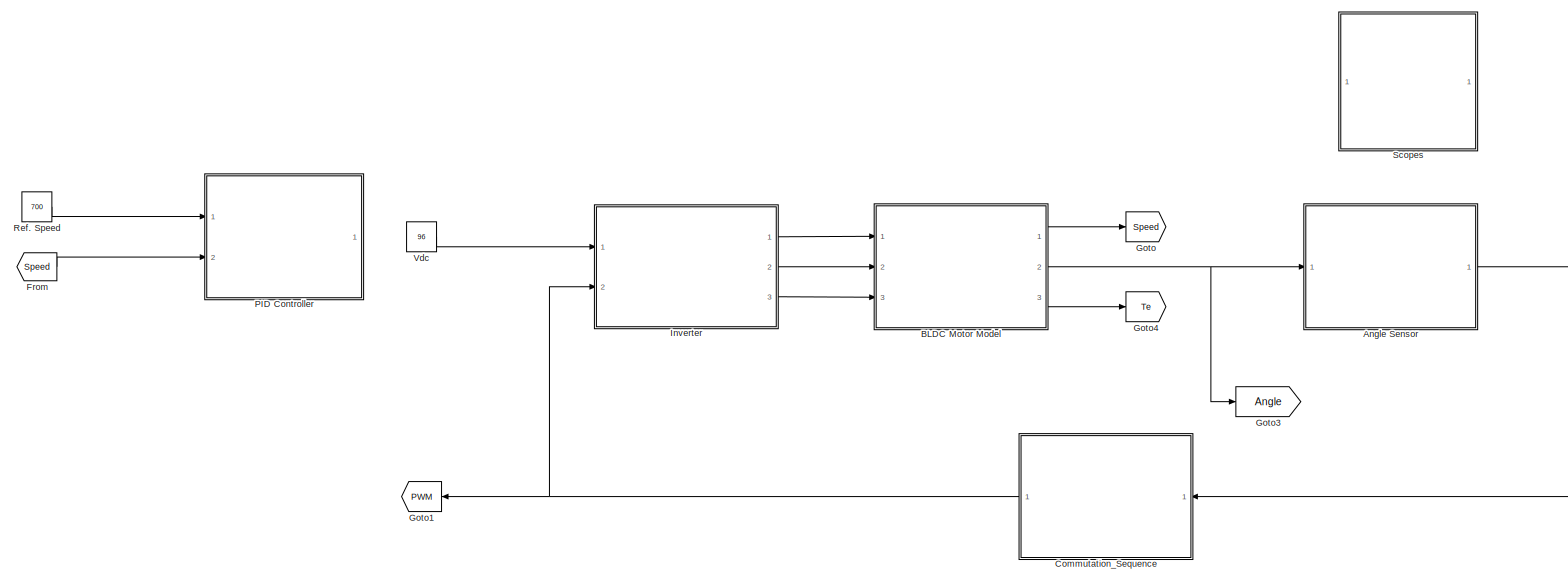
[diagram: root canvas - part 1/1, most of the canvas]
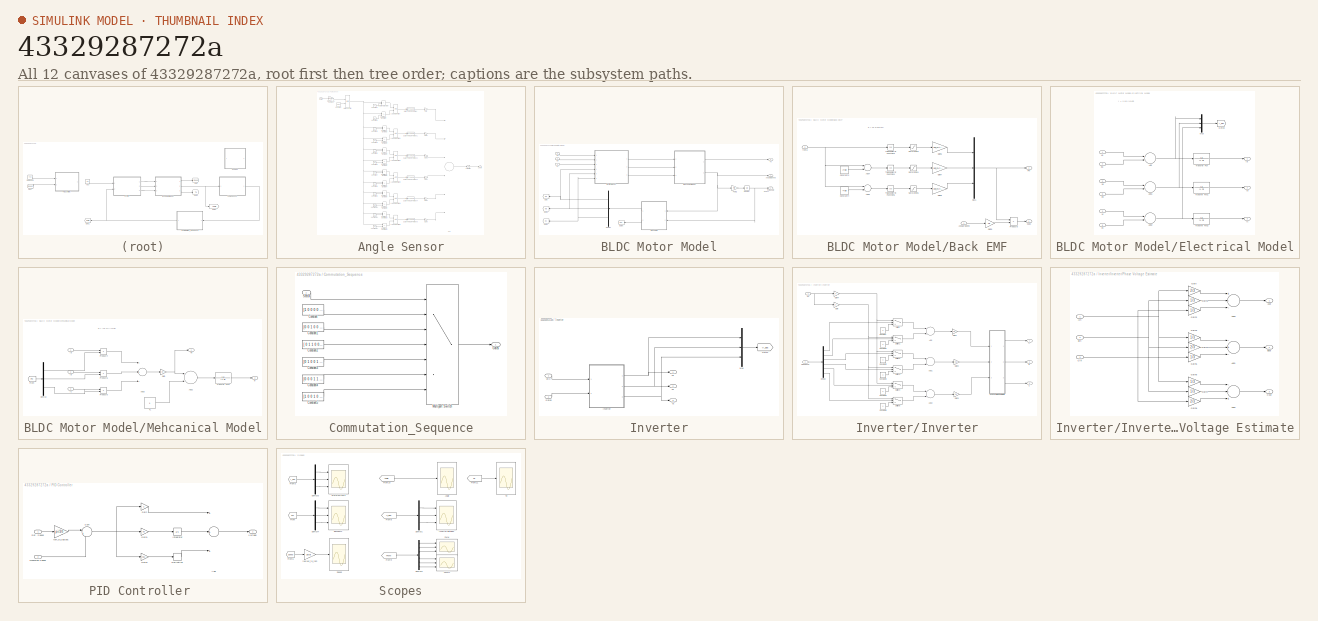
[diagram: thumbnail index - all 12 canvases of the model, root first then tree order]
MODEL slx_43329287272a
KIND model
CONFIG AbsTol = auto
CONFIG FixedStep = auto
CONFIG MaxStep = auto
CONFIG MinStep = auto
CONFIG RelTol = auto
CONFIG SampleTimeConstraint = Unconstrained
CONFIG Solver = ode45
CONFIG SolverMode = Auto
CONFIG SolverName = ode45
CONFIG StartTime = 0.0
CONFIG StopTime = 1
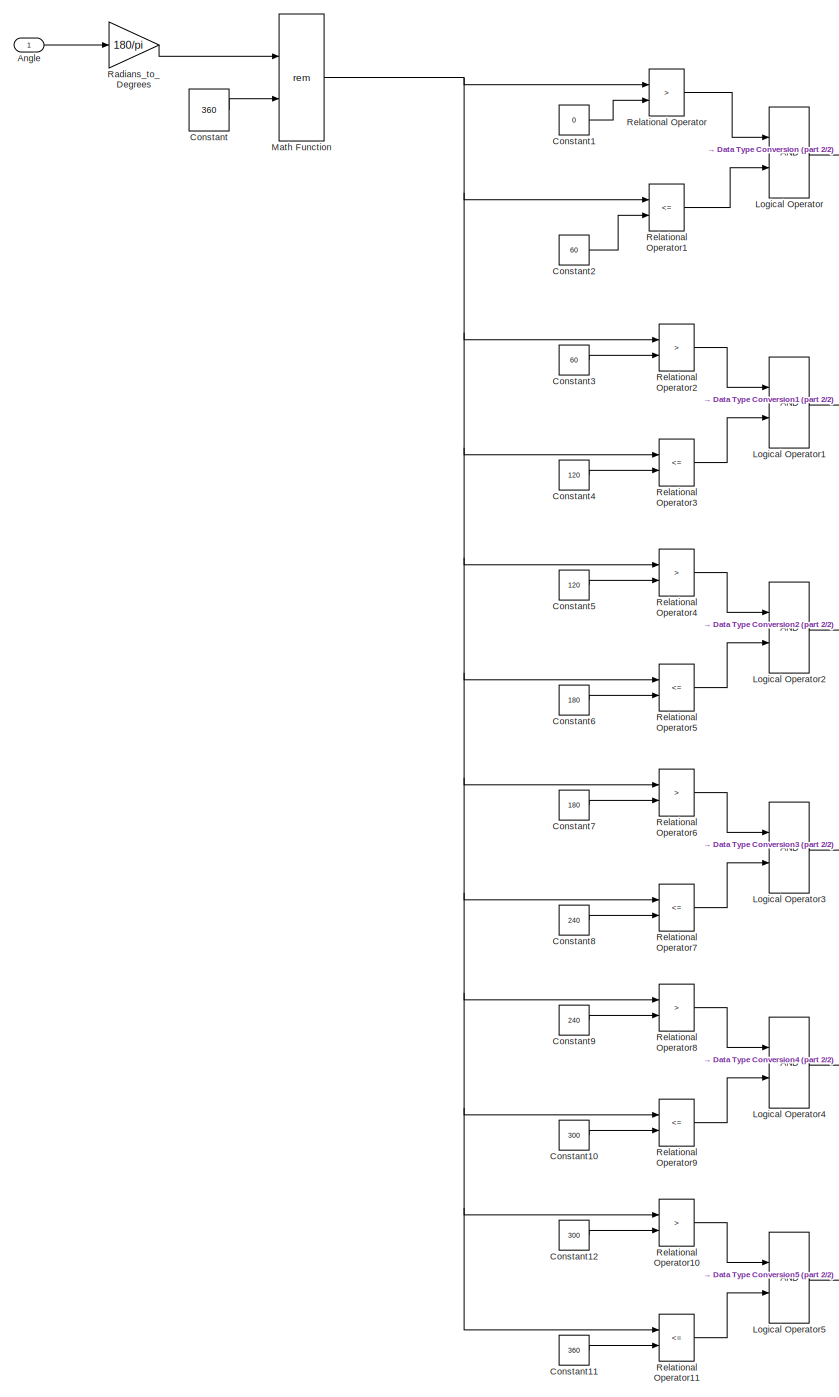
[diagram: Angle Sensor - part 1/2, left side, full height]
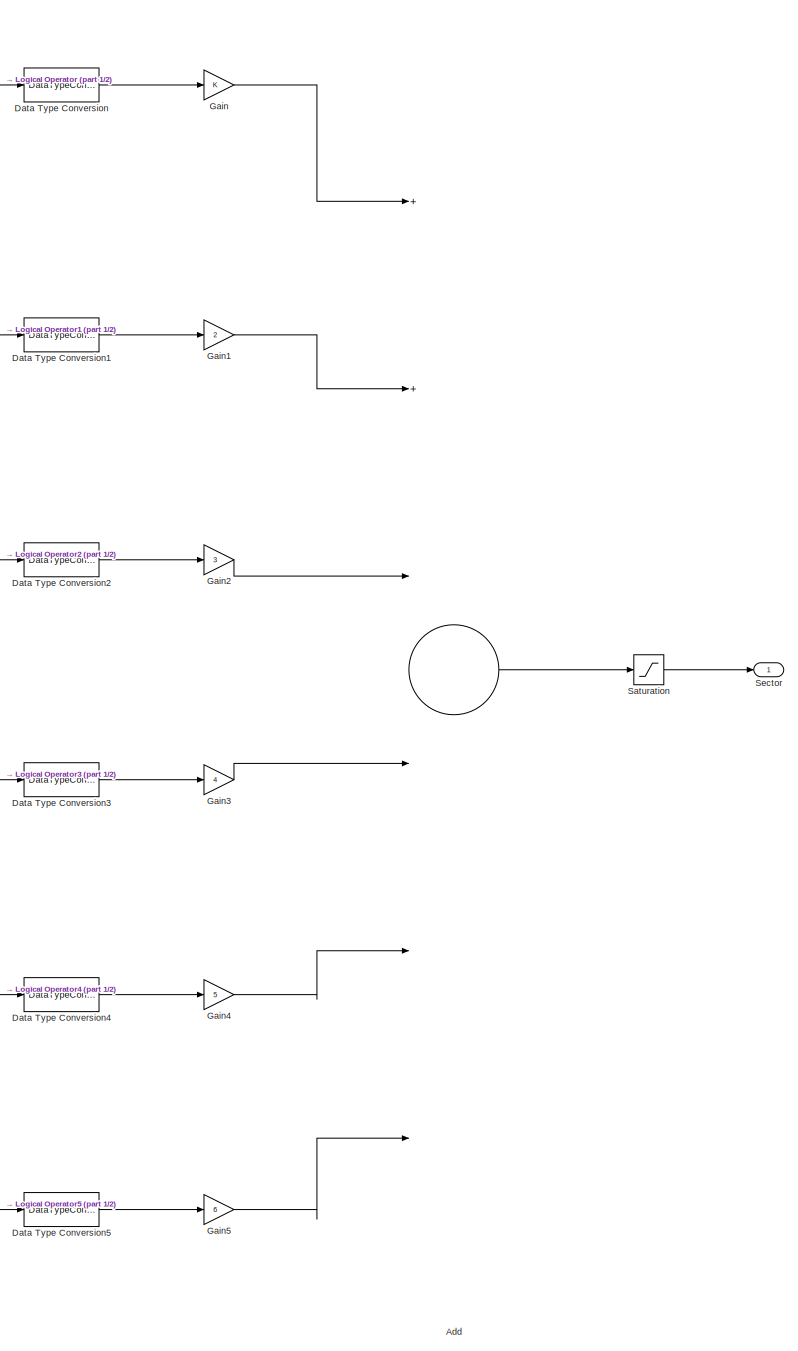
[diagram: Angle Sensor - part 2/2, right side, full height]
BLOCK [SubSystem] Angle Sensor
  Ports = [1, 1]
  RequestExecContextInheritance = off
BLOCK [Sum] Angle Sensor/Add
  InputSameDT = off
  Inputs = 6
  OutDataTypeStr = Inherit: Inherit via internal rule
  Ports = [6, 1]
  SaturateOnIntegerOverflow = off
BLOCK [Inport] Angle Sensor/Angle
  IconDisplay = Port number
BLOCK [Constant] Angle Sensor/Constant
  Value = 360
BLOCK [Constant] Angle Sensor/Constant1
  Value = 0
BLOCK [Constant] Angle Sensor/Constant10
  Value = 300
BLOCK [Constant] Angle Sensor/Constant11
  Value = 360
BLOCK [Constant] Angle Sensor/Constant12
  Value = 300
BLOCK [Constant] Angle Sensor/Constant2
  Value = 60
BLOCK [Constant] Angle Sensor/Constant3
  Value = 60
BLOCK [Constant] Angle Sensor/Constant4
  Value = 120
BLOCK [Constant] Angle Sensor/Constant5
  Value = 120
BLOCK [Constant] Angle Sensor/Constant6
  Value = 180
BLOCK [Constant] Angle Sensor/Constant7
  Value = 180
BLOCK [Constant] Angle Sensor/Constant8
  Value = 240
BLOCK [Constant] Angle Sensor/Constant9
  Value = 240
BLOCK [DataTypeConversion] Angle Sensor/Data Type Conversion
  RndMeth = Floor
  SaturateOnIntegerOverflow = off
BLOCK [DataTypeConversion] Angle Sensor/Data Type Conversion1
  RndMeth = Floor
  SaturateOnIntegerOverflow = off
BLOCK [DataTypeConversion] Angle Sensor/Data Type Conversion2
  RndMeth = Floor
  SaturateOnIntegerOverflow = off
BLOCK [DataTypeConversion] Angle Sensor/Data Type Conversion3
  RndMeth = Floor
  SaturateOnIntegerOverflow = off
BLOCK [DataTypeConversion] Angle Sensor/Data Type Conversion4
  RndMeth = Floor
  SaturateOnIntegerOverflow = off
BLOCK [DataTypeConversion] Angle Sensor/Data Type Conversion5
  RndMeth = Floor
  SaturateOnIntegerOverflow = off
BLOCK [Gain] Angle Sensor/Gain
  OutDataTypeStr = Inherit: Inherit via internal rule
  ParamDataTypeStr = Inherit: Inherit via internal rule
  SaturateOnIntegerOverflow = off
BLOCK [Gain] Angle Sensor/Gain1
  Gain = 2
  OutDataTypeStr = Inherit: Inherit via internal rule
  ParamDataTypeStr = Inherit: Inherit via internal rule
  SaturateOnIntegerOverflow = off
BLOCK [Gain] Angle Sensor/Gain2
  Gain = 3
  OutDataTypeStr = Inherit: Inherit via internal rule
  ParamDataTypeStr = Inherit: Inherit via internal rule
  SaturateOnIntegerOverflow = off
BLOCK [Gain] Angle Sensor/Gain3
  Gain = 4
  OutDataTypeStr = Inherit: Inherit via internal rule
  ParamDataTypeStr = Inherit: Inherit via internal rule
  SaturateOnIntegerOverflow = off
BLOCK [Gain] Angle Sensor/Gain4
  Gain = 5
  OutDataTypeStr = Inherit: Inherit via internal rule
  ParamDataTypeStr = Inherit: Inherit via internal rule
  SaturateOnIntegerOverflow = off
BLOCK [Gain] Angle Sensor/Gain5
  Gain = 6
  OutDataTypeStr = Inherit: Inherit via internal rule
  ParamDataTypeStr = Inherit: Inherit via internal rule
  SaturateOnIntegerOverflow = off
BLOCK [Logic] Angle Sensor/Logical Operator
  AllPortsSameDT = off
  OutDataTypeStr = boolean
  Ports = [2, 1]
BLOCK [Logic] Angle Sensor/Logical Operator1
  AllPortsSameDT = off
  OutDataTypeStr = boolean
  Ports = [2, 1]
BLOCK [Logic] Angle Sensor/Logical Operator2
  AllPortsSameDT = off
  OutDataTypeStr = boolean
  Ports = [2, 1]
BLOCK [Logic] Angle Sensor/Logical Operator3
  AllPortsSameDT = off
  OutDataTypeStr = boolean
  Ports = [2, 1]
BLOCK [Logic] Angle Sensor/Logical Operator4
  AllPortsSameDT = off
  OutDataTypeStr = boolean
  Ports = [2, 1]
BLOCK [Logic] Angle Sensor/Logical Operator5
  AllPortsSameDT = off
  OutDataTypeStr = boolean
  Ports = [2, 1]
BLOCK [Math] Angle Sensor/Math Function
  Operator = rem
  Ports = [2, 1]
BLOCK [Gain] Angle Sensor/Radians_to_Degrees
  Gain = 180/pi
  OutDataTypeStr = Inherit: Inherit via internal rule
  ParamDataTypeStr = Inherit: Inherit via internal rule
  SaturateOnIntegerOverflow = off
BLOCK [RelationalOperator] Angle Sensor/Relational Operator
  InputSameDT = off
  Operator = >
  OutDataTypeStr = boolean
  Ports = [2, 1]
BLOCK [RelationalOperator] Angle Sensor/Relational Operator1
  InputSameDT = off
  Operator = <=
  OutDataTypeStr = boolean
  Ports = [2, 1]
BLOCK [RelationalOperator] Angle Sensor/Relational Operator10
  InputSameDT = off
  Operator = >
  OutDataTypeStr = boolean
  Ports = [2, 1]
BLOCK [RelationalOperator] Angle Sensor/Relational Operator11
  InputSameDT = off
  Operator = <=
  OutDataTypeStr = boolean
  Ports = [2, 1]
BLOCK [RelationalOperator] Angle Sensor/Relational Operator2
  InputSameDT = off
  Operator = >
  OutDataTypeStr = boolean
  Ports = [2, 1]
BLOCK [RelationalOperator] Angle Sensor/Relational Operator3
  InputSameDT = off
  Operator = <=
  OutDataTypeStr = boolean
  Ports = [2, 1]
BLOCK [RelationalOperator] Angle Sensor/Relational Operator4
  InputSameDT = off
  Operator = >
  OutDataTypeStr = boolean
  Ports = [2, 1]
BLOCK [RelationalOperator] Angle Sensor/Relational Operator5
  InputSameDT = off
  Operator = <=
  OutDataTypeStr = boolean
  Ports = [2, 1]
BLOCK [RelationalOperator] Angle Sensor/Relational Operator6
  InputSameDT = off
  Operator = >
  OutDataTypeStr = boolean
  Ports = [2, 1]
BLOCK [RelationalOperator] Angle Sensor/Relational Operator7
  InputSameDT = off
  Operator = <=
  OutDataTypeStr = boolean
  Ports = [2, 1]
BLOCK [RelationalOperator] Angle Sensor/Relational Operator8
  InputSameDT = off
  Operator = >
  OutDataTypeStr = boolean
  Ports = [2, 1]
BLOCK [RelationalOperator] Angle Sensor/Relational Operator9
  InputSameDT = off
  Operator = <=
  OutDataTypeStr = boolean
  Ports = [2, 1]
BLOCK [Saturate] Angle Sensor/Saturation
  InputPortMap = u0
  LowerLimit = 1
  Ports = [1, 1]
  UpperLimit = 6
BLOCK [Outport] Angle Sensor/Sector
  IconDisplay = Port number
BLOCK [SubSystem] BLDC Motor Model
  Ports = [3, 3]
  RequestExecContextInheritance = off
BLOCK [Outport] BLDC Motor Model/AngularSpeed
  IconDisplay = Port number
BLOCK [SubSystem] BLDC Motor Model/Back EMF
  Ports = [2, 2]
  RequestExecContextInheritance = off
BLOCK [Sum] BLDC Motor Model/Back EMF/Add4
  InputSameDT = off
  Inputs = +-
  OutDataTypeStr = Inherit: Inherit via internal rule
  Ports = [2, 1]
  SaturateOnIntegerOverflow = off
BLOCK [Sum] BLDC Motor Model/Back EMF/Add5
  InputSameDT = off
  Inputs = +-
  OutDataTypeStr = Inherit: Inherit via internal rule
  Ports = [2, 1]
  SaturateOnIntegerOverflow = off
BLOCK [Inport] BLDC Motor Model/Back EMF/AngularSpeed
  IconDisplay = Port number
BLOCK [Constant] BLDC Motor Model/Back EMF/Constant3
  Value = 2*pi/3
BLOCK [Constant] BLDC Motor Model/Back EMF/Constant4
  Value = 4*pi/3
BLOCK [Gain] BLDC Motor Model/Back EMF/Gain6
  Gain = phi_m/trap
  OutDataTypeStr = Inherit: Inherit via internal rule
  ParamDataTypeStr = Inherit: Inherit via internal rule
  SaturateOnIntegerOverflow = off
BLOCK [Gain] BLDC Motor Model/Back EMF/Gain7
  Gain = phi_m/trap
  OutDataTypeStr = Inherit: Inherit via internal rule
  ParamDataTypeStr = Inherit: Inherit via internal rule
  SaturateOnIntegerOverflow = off
BLOCK [Gain] BLDC Motor Model/Back EMF/Gain8
  Gain = phi_m/trap
  OutDataTypeStr = Inherit: Inherit via internal rule
  ParamDataTypeStr = Inherit: Inherit via internal rule
  SaturateOnIntegerOverflow = off
BLOCK [Gain] BLDC Motor Model/Back EMF/Gain9
  Gain = Ke
  OutDataTypeStr = Inherit: Inherit via internal rule
  ParamDataTypeStr = Inherit: Inherit via internal rule
  SaturateOnIntegerOverflow = off
BLOCK [Mux] BLDC Motor Model/Back EMF/Mux1
  DisplayOption = bar
  Inputs = 3
  Ports = [3, 1]
BLOCK [Outport] BLDC Motor Model/Back EMF/Phi
  IconDisplay = Port number
  Port = 2
BLOCK [Product] BLDC Motor Model/Back EMF/Product6
  InputSameDT = off
  OutDataTypeStr = Inherit: Inherit via internal rule
  Ports = [2, 1]
  RndMeth = Floor
  SaturateOnIntegerOverflow = off
BLOCK [Saturate] BLDC Motor Model/Back EMF/Saturation3
  InputPortMap = u0
  LowerLimit = -trap
  Ports = [1, 1]
  UpperLimit = trap
BLOCK [Saturate] BLDC Motor Model/Back EMF/Saturation4
  InputPortMap = u0
  LowerLimit = -trap
  Ports = [1, 1]
  UpperLimit = trap
BLOCK [Saturate] BLDC Motor Model/Back EMF/Saturation5
  InputPortMap = u0
  LowerLimit = -trap
  Ports = [1, 1]
  UpperLimit = trap
BLOCK [Trigonometry] BLDC Motor Model/Back EMF/Trigonometric Function3
  Operator = cos
  Ports = [1, 1]
BLOCK [Trigonometry] BLDC Motor Model/Back EMF/Trigonometric Function4
  Operator = cos
  Ports = [1, 1]
BLOCK [Trigonometry] BLDC Motor Model/Back EMF/Trigonometric Function5
  Operator = cos
  Ports = [1, 1]
BLOCK [Outport] BLDC Motor Model/Back EMF/eabc
  IconDisplay = Port number
BLOCK [Inport] BLDC Motor Model/Back EMF/theta
  IconDisplay = Port number
  Port = 2
BLOCK [Demux] BLDC Motor Model/Demux
  DisplayOption = bar
  Outputs = 3
  Ports = [1, 3]
BLOCK [SubSystem] BLDC Motor Model/Electrical Model
  Ports = [6, 3]
  RequestExecContextInheritance = off
BLOCK [Sum] BLDC Motor Model/Electrical Model/Add
  InputSameDT = off
  Inputs = +-
  OutDataTypeStr = Inherit: Inherit via internal rule
  Ports = [2, 1]
  SaturateOnIntegerOverflow = off
BLOCK [Sum] BLDC Motor Model/Electrical Model/Add1
  InputSameDT = off
  Inputs = +-
  OutDataTypeStr = Inherit: Inherit via internal rule
  Ports = [2, 1]
  SaturateOnIntegerOverflow = off
BLOCK [Sum] BLDC Motor Model/Electrical Model/Add2
  InputSameDT = off
  Inputs = +-
  OutDataTypeStr = Inherit: Inherit via internal rule
  Ports = [2, 1]
  SaturateOnIntegerOverflow = off
BLOCK [Goto] BLDC Motor Model/Electrical Model/Goto3
  GotoTag = I_abc
  TagVisibility = global
BLOCK [Outport] BLDC Motor Model/Electrical Model/Ia
  IconDisplay = Port number
BLOCK [Outport] BLDC Motor Model/Electrical Model/Ib
  IconDisplay = Port number
  Port = 2
BLOCK [Outport] BLDC Motor Model/Electrical Model/Ic
  IconDisplay = Port number
  Port = 3
BLOCK [Mux] BLDC Motor Model/Electrical Model/Mux
  DisplayOption = bar
  Inputs = 3
  Ports = [3, 1]
BLOCK [TransferFcn] BLDC Motor Model/Electrical Model/Transfer Fcn
  Denominator = [L R]
BLOCK [TransferFcn] BLDC Motor Model/Electrical Model/Transfer Fcn1
  Denominator = [L R]
BLOCK [TransferFcn] BLDC Motor Model/Electrical Model/Transfer Fcn2
  Denominator = [L R]
BLOCK [Inport] BLDC Motor Model/Electrical Model/Va
  IconDisplay = Port number
BLOCK [Inport] BLDC Motor Model/Electrical Model/Vb
  IconDisplay = Port number
  Port = 2
BLOCK [Inport] BLDC Motor Model/Electrical Model/Vc
  IconDisplay = Port number
  Port = 3
BLOCK [Inport] BLDC Motor Model/Electrical Model/ea
  IconDisplay = Port number
  Port = 4
BLOCK [Inport] BLDC Motor Model/Electrical Model/eb
  IconDisplay = Port number
  Port = 5
BLOCK [Inport] BLDC Motor Model/Electrical Model/ec
  IconDisplay = Port number
  Port = 6
BLOCK [Goto] BLDC Motor Model/Goto
  GotoTag = ea
  TagVisibility = global
BLOCK [Goto] BLDC Motor Model/Goto1
  GotoTag = eb
  TagVisibility = global
BLOCK [Goto] BLDC Motor Model/Goto2
  GotoTag = ec
  TagVisibility = global
BLOCK [Goto] BLDC Motor Model/Goto6
  GotoTag = Phi
  TagVisibility = global
BLOCK [Integrator] BLDC Motor Model/Integrator
  InitialCondition = 0.0000001
  LowerSaturationLimit = -60
  Ports = [1, 1]
  UpperSaturationLimit = 60
BLOCK [SubSystem] BLDC Motor Model/Mehcanical Model
  Ports = [3, 2]
  RequestExecContextInheritance = off
BLOCK [Sum] BLDC Motor Model/Mehcanical Model/Add2
  InputSameDT = off
  Inputs = +-
  OutDataTypeStr = Inherit: Inherit via internal rule
  Ports = [2, 1]
  SaturateOnIntegerOverflow = off
BLOCK [Sum] BLDC Motor Model/Mehcanical Model/Add3
  InputSameDT = off
  Inputs = +++
  OutDataTypeStr = Inherit: Inherit via internal rule
  Ports = [3, 1]
  SaturateOnIntegerOverflow = off
BLOCK [Demux] BLDC Motor Model/Mehcanical Model/Demux
  DisplayOption = bar
  Outputs = 3
  Ports = [1, 3]
BLOCK [From] BLDC Motor Model/Mehcanical Model/From
  GotoTag = Phi
  TagVisibility = global
BLOCK [Gain] BLDC Motor Model/Mehcanical Model/Gain
  Gain = Kt
  OutDataTypeStr = Inherit: Inherit via internal rule
  ParamDataTypeStr = Inherit: Inherit via internal rule
  SaturateOnIntegerOverflow = off
BLOCK [Inport] BLDC Motor Model/Mehcanical Model/Ia
  IconDisplay = Port number
BLOCK [Inport] BLDC Motor Model/Mehcanical Model/Ib
  IconDisplay = Port number
  Port = 2
BLOCK [Inport] BLDC Motor Model/Mehcanical Model/Ic
  IconDisplay = Port number
  Port = 3
BLOCK [Product] BLDC Motor Model/Mehcanical Model/Product4
  InputSameDT = off
  OutDataTypeStr = Inherit: Inherit via internal rule
  Ports = [2, 1]
  RndMeth = Floor
  SaturateOnIntegerOverflow = off
BLOCK [Product] BLDC Motor Model/Mehcanical Model/Product5
  InputSameDT = off
  OutDataTypeStr = Inherit: Inherit via internal rule
  Ports = [2, 1]
  RndMeth = Floor
  SaturateOnIntegerOverflow = off
BLOCK [Product] BLDC Motor Model/Mehcanical Model/Product6
  InputSameDT = off
  OutDataTypeStr = Inherit: Inherit via internal rule
  Ports = [2, 1]
  RndMeth = Floor
  SaturateOnIntegerOverflow = off
BLOCK [Constant] BLDC Motor Model/Mehcanical Model/TL
BLOCK [Outport] BLDC Motor Model/Mehcanical Model/Te
  IconDisplay = Port number
BLOCK [TransferFcn] BLDC Motor Model/Mehcanical Model/Transfer Fcn1
  Denominator = [J B]
BLOCK [Outport] BLDC Motor Model/Mehcanical Model/w
  IconDisplay = Port number
  Port = 2
BLOCK [Gain] BLDC Motor Model/Pole//2
  Gain = P/2
  OutDataTypeStr = Inherit: Inherit via internal rule
  ParamDataTypeStr = Inherit: Inherit via internal rule
  SaturateOnIntegerOverflow = off
BLOCK [Outport] BLDC Motor Model/RotorAngle
  IconDisplay = Port number
  Port = 2
BLOCK [Outport] BLDC Motor Model/Te
  IconDisplay = Port number
  Port = 3
BLOCK [Inport] BLDC Motor Model/Va
  IconDisplay = Port number
BLOCK [Inport] BLDC Motor Model/Vb
  IconDisplay = Port number
  Port = 2
BLOCK [Inport] BLDC Motor Model/Vc
  IconDisplay = Port number
  Port = 3
BLOCK [SubSystem] Commutation_Sequence
  Ports = [1, 1]
  RequestExecContextInheritance = off
BLOCK [Constant] Commutation_Sequence/Constant
  Value = [1 0 0 0 0 1]
BLOCK [Constant] Commutation_Sequence/Constant1
  Value = [0 0 1 0 0 1]
BLOCK [Constant] Commutation_Sequence/Constant2
  Value = [ 0 1 1 0 0 0]
BLOCK [Constant] Commutation_Sequence/Constant3
  Value = [0 1 0 0 1 0]
BLOCK [Constant] Commutation_Sequence/Constant4
  Value = [0 0 0 1 1 0]
BLOCK [Constant] Commutation_Sequence/Constant5
  Value = [1 0 0 1 0 0]
BLOCK [Outport] Commutation_Sequence/Gates
  IconDisplay = Port number
BLOCK [MultiPortSwitch] Commutation_Sequence/Multiport Switch
  DiagnosticForDefault = None
  InputSameDT = off
  Inputs = 6
  Ports = [7, 1]
  SaturateOnIntegerOverflow = off
BLOCK [Inport] Commutation_Sequence/Sector
  IconDisplay = Port number
BLOCK [From] From
  Commented = on
  GotoTag = Speed
  TagVisibility = global
BLOCK [Goto] Goto
  GotoTag = Speed
  TagVisibility = global
BLOCK [Goto] Goto1
  GotoTag = PWM
  TagVisibility = global
BLOCK [Goto] Goto3
  GotoTag = Angle
  TagVisibility = global
BLOCK [Goto] Goto4
  GotoTag = Te
  TagVisibility = global
BLOCK [SubSystem] Inverter
  Ports = [2, 3]
  RequestExecContextInheritance = off
BLOCK [Inport] Inverter/Gates
  IconDisplay = Port number
  Port = 2
BLOCK [Goto] Inverter/Goto7
  GotoTag = V_abc
  TagVisibility = global
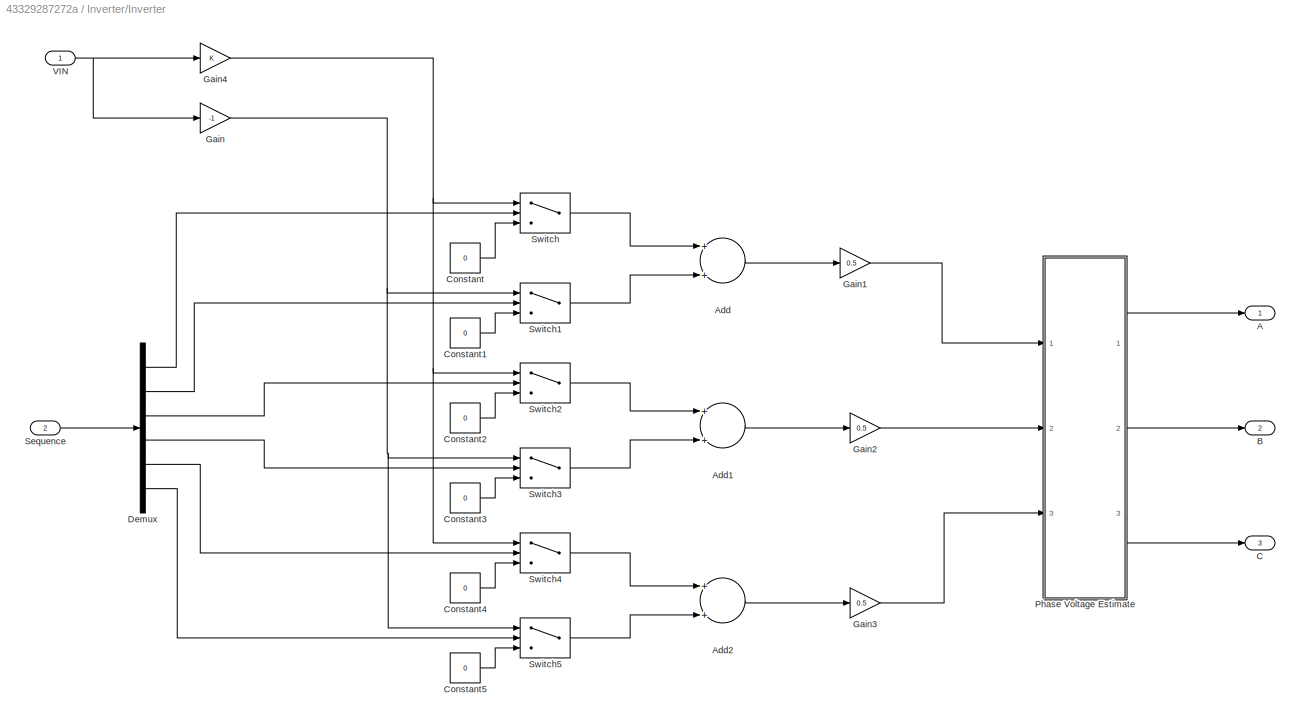
BLOCK [SubSystem] Inverter/Inverter
  Ports = [2, 3]
  RequestExecContextInheritance = off
BLOCK [Outport] Inverter/Inverter/A
  IconDisplay = Port number
BLOCK [Sum] Inverter/Inverter/Add
  InputSameDT = off
  OutDataTypeStr = Inherit: Inherit via internal rule
  Ports = [2, 1]
  SaturateOnIntegerOverflow = off
BLOCK [Sum] Inverter/Inverter/Add1
  InputSameDT = off
  OutDataTypeStr = Inherit: Inherit via internal rule
  Ports = [2, 1]
  SaturateOnIntegerOverflow = off
BLOCK [Sum] Inverter/Inverter/Add2
  InputSameDT = off
  OutDataTypeStr = Inherit: Inherit via internal rule
  Ports = [2, 1]
  SaturateOnIntegerOverflow = off
BLOCK [Outport] Inverter/Inverter/B
  IconDisplay = Port number
  Port = 2
BLOCK [Outport] Inverter/Inverter/C
  IconDisplay = Port number
  Port = 3
BLOCK [Constant] Inverter/Inverter/Constant
  Value = 0
BLOCK [Constant] Inverter/Inverter/Constant1
  Value = 0
BLOCK [Constant] Inverter/Inverter/Constant2
  Value = 0
BLOCK [Constant] Inverter/Inverter/Constant3
  Value = 0
BLOCK [Constant] Inverter/Inverter/Constant4
  Value = 0
BLOCK [Constant] Inverter/Inverter/Constant5
  Value = 0
BLOCK [Demux] Inverter/Inverter/Demux
  DisplayOption = bar
  Outputs = 6
  Ports = [1, 6]
BLOCK [Gain] Inverter/Inverter/Gain
  Gain = -1
  OutDataTypeStr = Inherit: Inherit via internal rule
  ParamDataTypeStr = Inherit: Inherit via internal rule
  SaturateOnIntegerOverflow = off
BLOCK [Gain] Inverter/Inverter/Gain1
  Gain = 0.5
  OutDataTypeStr = Inherit: Inherit via internal rule
  ParamDataTypeStr = Inherit: Inherit via internal rule
  SaturateOnIntegerOverflow = off
BLOCK [Gain] Inverter/Inverter/Gain2
  Gain = 0.5
  OutDataTypeStr = Inherit: Inherit via internal rule
  ParamDataTypeStr = Inherit: Inherit via internal rule
  SaturateOnIntegerOverflow = off
BLOCK [Gain] Inverter/Inverter/Gain3
  Gain = 0.5
  OutDataTypeStr = Inherit: Inherit via internal rule
  ParamDataTypeStr = Inherit: Inherit via internal rule
  SaturateOnIntegerOverflow = off
BLOCK [Gain] Inverter/Inverter/Gain4
  OutDataTypeStr = Inherit: Inherit via internal rule
  ParamDataTypeStr = Inherit: Inherit via internal rule
  SaturateOnIntegerOverflow = off
BLOCK [SubSystem] Inverter/Inverter/Phase Voltage Estimate
  Ports = [3, 3]
  RequestExecContextInheritance = off
BLOCK [Sum] Inverter/Inverter/Phase Voltage Estimate/Add1
  InputSameDT = off
  Inputs = -+-
  OutDataTypeStr = Inherit: Inherit via internal rule
  Ports = [3, 1]
  SaturateOnIntegerOverflow = off
BLOCK [Sum] Inverter/Inverter/Phase Voltage Estimate/Add2
  InputSameDT = off
  Inputs = --+
  OutDataTypeStr = Inherit: Inherit via internal rule
  Ports = [3, 1]
  SaturateOnIntegerOverflow = off
BLOCK [Sum] Inverter/Inverter/Phase Voltage Estimate/Add3
  InputSameDT = off
  Inputs = +--
  OutDataTypeStr = Inherit: Inherit via internal rule
  Ports = [3, 1]
  SaturateOnIntegerOverflow = off
BLOCK [Inport] Inverter/Inverter/Phase Voltage Estimate/Ain
  IconDisplay = Port number
BLOCK [Outport] Inverter/Inverter/Phase Voltage Estimate/Aout
  IconDisplay = Port number
BLOCK [Inport] Inverter/Inverter/Phase Voltage Estimate/Bin
  IconDisplay = Port number
  Port = 2
BLOCK [Outport] Inverter/Inverter/Phase Voltage Estimate/Bout
  IconDisplay = Port number
  Port = 2
BLOCK [Inport] Inverter/Inverter/Phase Voltage Estimate/Cin
  IconDisplay = Port number
  Port = 3
BLOCK [Outport] Inverter/Inverter/Phase Voltage Estimate/Cout
  IconDisplay = Port number
  Port = 3
BLOCK [Gain] Inverter/Inverter/Phase Voltage Estimate/Gain
  Gain = 2/3
  OutDataTypeStr = Inherit: Inherit via internal rule
  ParamDataTypeStr = Inherit: Inherit via internal rule
  SaturateOnIntegerOverflow = off
BLOCK [Gain] Inverter/Inverter/Phase Voltage Estimate/Gain1
  Gain = 1/3
  OutDataTypeStr = Inherit: Inherit via internal rule
  ParamDataTypeStr = Inherit: Inherit via internal rule
  SaturateOnIntegerOverflow = off
BLOCK [Gain] Inverter/Inverter/Phase Voltage Estimate/Gain2
  Gain = 1/3
  OutDataTypeStr = Inherit: Inherit via internal rule
  ParamDataTypeStr = Inherit: Inherit via internal rule
  SaturateOnIntegerOverflow = off
BLOCK [Gain] Inverter/Inverter/Phase Voltage Estimate/Gain3
  Gain = 1/3
  OutDataTypeStr = Inherit: Inherit via internal rule
  ParamDataTypeStr = Inherit: Inherit via internal rule
  SaturateOnIntegerOverflow = off
BLOCK [Gain] Inverter/Inverter/Phase Voltage Estimate/Gain4
  Gain = 2/3
  OutDataTypeStr = Inherit: Inherit via internal rule
  ParamDataTypeStr = Inherit: Inherit via internal rule
  SaturateOnIntegerOverflow = off
BLOCK [Gain] Inverter/Inverter/Phase Voltage Estimate/Gain5
  Gain = 1/3
  OutDataTypeStr = Inherit: Inherit via internal rule
  ParamDataTypeStr = Inherit: Inherit via internal rule
  SaturateOnIntegerOverflow = off
BLOCK [Gain] Inverter/Inverter/Phase Voltage Estimate/Gain6
  Gain = 1/3
  OutDataTypeStr = Inherit: Inherit via internal rule
  ParamDataTypeStr = Inherit: Inherit via internal rule
  SaturateOnIntegerOverflow = off
BLOCK [Gain] Inverter/Inverter/Phase Voltage Estimate/Gain7
  Gain = 1/3
  OutDataTypeStr = Inherit: Inherit via internal rule
  ParamDataTypeStr = Inherit: Inherit via internal rule
  SaturateOnIntegerOverflow = off
BLOCK [Gain] Inverter/Inverter/Phase Voltage Estimate/Gain8
  Gain = 2/3
  OutDataTypeStr = Inherit: Inherit via internal rule
  ParamDataTypeStr = Inherit: Inherit via internal rule
  SaturateOnIntegerOverflow = off
BLOCK [Inport] Inverter/Inverter/Sequence
  IconDisplay = Port number
  Port = 2
BLOCK [Switch] Inverter/Inverter/Switch
  Criteria = u2 > Threshold
  InputSameDT = off
  SaturateOnIntegerOverflow = off
BLOCK [Switch] Inverter/Inverter/Switch1
  Criteria = u2 > Threshold
  InputSameDT = off
  SaturateOnIntegerOverflow = off
BLOCK [Switch] Inverter/Inverter/Switch2
  Criteria = u2 > Threshold
  InputSameDT = off
  SaturateOnIntegerOverflow = off
BLOCK [Switch] Inverter/Inverter/Switch3
  Criteria = u2 > Threshold
  InputSameDT = off
  SaturateOnIntegerOverflow = off
BLOCK [Switch] Inverter/Inverter/Switch4
  Criteria = u2 > Threshold
  InputSameDT = off
  SaturateOnIntegerOverflow = off
BLOCK [Switch] Inverter/Inverter/Switch5
  Criteria = u2 > Threshold
  InputSameDT = off
  SaturateOnIntegerOverflow = off
BLOCK [Inport] Inverter/Inverter/VIN
  IconDisplay = Port number
BLOCK [Mux] Inverter/Mux
  DisplayOption = bar
  Inputs = 3
  Ports = [3, 1]
BLOCK [Inport] Inverter/VDC
  IconDisplay = Port number
BLOCK [Outport] Inverter/Va
  IconDisplay = Port number
BLOCK [Outport] Inverter/Vb
  IconDisplay = Port number
  Port = 2
BLOCK [Outport] Inverter/Vc
  IconDisplay = Port number
  Port = 3
BLOCK [SubSystem] PID Controller 
  Commented = on
  Ports = [2, 1]
  RequestExecContextInheritance = off
BLOCK [Sum] PID Controller /Add
  InputSameDT = off
  Inputs = +++
  OutDataTypeStr = Inherit: Inherit via internal rule
  Ports = [3, 1]
  SaturateOnIntegerOverflow = off
BLOCK [Derivative] PID Controller /Derivative
BLOCK [Gain] PID Controller /Gain
  Gain = 2
  OutDataTypeStr = Inherit: Inherit via internal rule
  ParamDataTypeStr = Inherit: Inherit via internal rule
  SaturateOnIntegerOverflow = off
BLOCK [Gain] PID Controller /Gain1
  Gain = 50
  OutDataTypeStr = Inherit: Inherit via internal rule
  ParamDataTypeStr = Inherit: Inherit via internal rule
  SaturateOnIntegerOverflow = off
BLOCK [Gain] PID Controller /Gain2
  Gain = 0.01
  OutDataTypeStr = Inherit: Inherit via internal rule
  ParamDataTypeStr = Inherit: Inherit via internal rule
  SaturateOnIntegerOverflow = off
BLOCK [Integrator] PID Controller /Integrator
  Ports = [1, 1]
BLOCK [Inport] PID Controller /Measured Speed
  IconDisplay = Port number
  Port = 2
BLOCK [Inport] PID Controller /Ref. Speed
  IconDisplay = Port number
BLOCK [Sum] PID Controller /Sum
  IconShape = round
  InputSameDT = off
  Inputs = |+-
  OutDataTypeStr = Inherit: Inherit via internal rule
  Ports = [2, 1]
  SaturateOnIntegerOverflow = off
BLOCK [Outport] PID Controller /Voltage
  IconDisplay = Port number
BLOCK [Gain] PID Controller /rpm_to_rad//sec
  Gain = pi/30
  OutDataTypeStr = Inherit: Inherit via internal rule
  ParamDataTypeStr = Inherit: Inherit via internal rule
  SaturateOnIntegerOverflow = off
BLOCK [Constant] Ref. Speed
  Commented = on
  Value = 700
BLOCK [SubSystem] Scopes
  Ports = []
  RequestExecContextInheritance = off
BLOCK [Scope] Scopes/Angle
  Floating = off
  LimitDataPoints = off
  NumInputPorts = 1
  Ports = [1]
  SaveName = ScopeData6
  ZoomMode = xonly
BLOCK [Scope] Scopes/BackEMF
  Floating = off
  LimitDataPoints = off
  NumInputPorts = 3
  Ports = [3]
  SaveName = ScopeData2
  YMax = 5~5~5
  YMin = -5~-5~-5
  ZoomMode = xonly
BLOCK [Demux] Scopes/Demux1
  DisplayOption = bar
  Outputs = 3
  Ports = [1, 3]
BLOCK [Demux] Scopes/Demux2
  DisplayOption = bar
  Outputs = 6
  Ports = [1, 6]
BLOCK [Demux] Scopes/Demux3
  DisplayOption = bar
  Outputs = 3
  Ports = [1, 3]
BLOCK [Demux] Scopes/Demux4
  DisplayOption = bar
  Outputs = 3
  Ports = [1, 3]
BLOCK [From] Scopes/From
  GotoTag = Phi
  TagVisibility = global
BLOCK [From] Scopes/From10
  GotoTag = Angle
  TagVisibility = global
BLOCK [From] Scopes/From11
  GotoTag = Te
  TagVisibility = global
BLOCK [From] Scopes/From3
  GotoTag = I_abc
  TagVisibility = global
BLOCK [From] Scopes/From6
  GotoTag = Speed
  TagVisibility = global
BLOCK [From] Scopes/From8
  GotoTag = V_abc
  TagVisibility = global
BLOCK [From] Scopes/From9
  GotoTag = PWM
  TagVisibility = global
BLOCK [Scope] Scopes/InverterVoltages
  Floating = off
  LimitDataPoints = off
  NumInputPorts = 3
  Ports = [3]
  SaveName = ScopeData3
  YMax = 5~5~5
  YMin = -5~-5~-5
  ZoomMode = xonly
BLOCK [Scope] Scopes/PWM
  Floating = off
  LimitDataPoints = off
  NumInputPorts = 3
  Ports = [3]
  SaveName = ScopeData5
  YMax = 5~5~5
  YMin = -5~-5~-5
  ZoomMode = xonly
BLOCK [Scope] Scopes/PWM1
  Floating = off
  LimitDataPoints = off
  NumInputPorts = 3
  Ports = [3]
  SaveName = ScopeData7
  YMax = 5~5~5
  YMin = -5~-5~-5
  ZoomMode = yonly
BLOCK [Scope] Scopes/Speed
  Floating = off
  LimitDataPoints = off
  NumInputPorts = 1
  Ports = [1]
  ZoomMode = xonly
BLOCK [Scope] Scopes/StatorCurrents
  Floating = off
  LimitDataPoints = off
  NumInputPorts = 3
  Ports = [3]
  SaveName = ScopeData4
  YMax = 5~5~5
  YMin = -5~-5~-5
BLOCK [Scope] Scopes/Te
  Floating = off
  LimitDataPoints = off
  NumInputPorts = 1
  Ports = [1]
  SaveName = ScopeData8
  ZoomMode = xonly
BLOCK [Gain] Scopes/rad//sec_to_rpm
  Gain = 30/pi
  OutDataTypeStr = Inherit: Inherit via internal rule
  ParamDataTypeStr = Inherit: Inherit via internal rule
  SaturateOnIntegerOverflow = off
BLOCK [Constant] Vdc
  Value = 96
ANNOTATION BLDC Motor Model: radians
ANNOTATION BLDC Motor Model/Back EMF: E = Ke.w.phi(flux)
ANNOTATION BLDC Motor Model/Electrical Model: I = (V-e)/(Ls+R)
ANNOTATION BLDC Motor Model/Mehcanical Model: w = (Te-TL)/(Js+B)
LINE Angle Sensor/Add:1 -> Angle Sensor/Saturation:1
LINE Angle Sensor/Angle:1 -> Angle Sensor/Radians_to_Degrees:1
LINE Angle Sensor/Constant10:1 -> Angle Sensor/Relational Operator9:2
LINE Angle Sensor/Constant11:1 -> Angle Sensor/Relational Operator11:2
LINE Angle Sensor/Constant12:1 -> Angle Sensor/Relational Operator10:2
LINE Angle Sensor/Constant1:1 -> Angle Sensor/Relational Operator:2
LINE Angle Sensor/Constant2:1 -> Angle Sensor/Relational Operator1:2
LINE Angle Sensor/Constant3:1 -> Angle Sensor/Relational Operator2:2
LINE Angle Sensor/Constant4:1 -> Angle Sensor/Relational Operator3:2
LINE Angle Sensor/Constant5:1 -> Angle Sensor/Relational Operator4:2
LINE Angle Sensor/Constant6:1 -> Angle Sensor/Relational Operator5:2
LINE Angle Sensor/Constant7:1 -> Angle Sensor/Relational Operator6:2
LINE Angle Sensor/Constant8:1 -> Angle Sensor/Relational Operator7:2
LINE Angle Sensor/Constant9:1 -> Angle Sensor/Relational Operator8:2
LINE Angle Sensor/Constant:1 -> Angle Sensor/Math Function:2
LINE Angle Sensor/Data Type Conversion1:1 -> Angle Sensor/Gain1:1
LINE Angle Sensor/Data Type Conversion2:1 -> Angle Sensor/Gain2:1
LINE Angle Sensor/Data Type Conversion3:1 -> Angle Sensor/Gain3:1
LINE Angle Sensor/Data Type Conversion4:1 -> Angle Sensor/Gain4:1
LINE Angle Sensor/Data Type Conversion5:1 -> Angle Sensor/Gain5:1
LINE Angle Sensor/Data Type Conversion:1 -> Angle Sensor/Gain:1
LINE Angle Sensor/Gain1:1 -> Angle Sensor/Add:2
LINE Angle Sensor/Gain2:1 -> Angle Sensor/Add:3
LINE Angle Sensor/Gain3:1 -> Angle Sensor/Add:4
LINE Angle Sensor/Gain4:1 -> Angle Sensor/Add:5
LINE Angle Sensor/Gain5:1 -> Angle Sensor/Add:6
LINE Angle Sensor/Gain:1 -> Angle Sensor/Add:1
LINE Angle Sensor/Logical Operator1:1 -> Angle Sensor/Data Type Conversion1:1
LINE Angle Sensor/Logical Operator2:1 -> Angle Sensor/Data Type Conversion2:1
LINE Angle Sensor/Logical Operator3:1 -> Angle Sensor/Data Type Conversion3:1
LINE Angle Sensor/Logical Operator4:1 -> Angle Sensor/Data Type Conversion4:1
LINE Angle Sensor/Logical Operator5:1 -> Angle Sensor/Data Type Conversion5:1
LINE Angle Sensor/Logical Operator:1 -> Angle Sensor/Data Type Conversion:1
NET Angle Sensor/Math Function:1 -> Angle Sensor/Relational Operator10:1, Angle Sensor/Relational Operator11:1, Angle Sensor/Relational Operator1:1, Angle Sensor/Relational Operator2:1, Angle Sensor/Relational Operator3:1, Angle Sensor/Relational Operator4:1, Angle Sensor/Relational Operator5:1, Angle Sensor/Relational Operator6:1, Angle Sensor/Relational Operator7:1, Angle Sensor/Relational Operator8:1, Angle Sensor/Relational Operator9:1, Angle Sensor/Relational Operator:1
LINE Angle Sensor/Radians_to_Degrees:1 -> Angle Sensor/Math Function:1
LINE Angle Sensor/Relational Operator10:1 -> Angle Sensor/Logical Operator5:1
LINE Angle Sensor/Relational Operator11:1 -> Angle Sensor/Logical Operator5:2
LINE Angle Sensor/Relational Operator1:1 -> Angle Sensor/Logical Operator:2
LINE Angle Sensor/Relational Operator2:1 -> Angle Sensor/Logical Operator1:1
LINE Angle Sensor/Relational Operator3:1 -> Angle Sensor/Logical Operator1:2
LINE Angle Sensor/Relational Operator4:1 -> Angle Sensor/Logical Operator2:1
LINE Angle Sensor/Relational Operator5:1 -> Angle Sensor/Logical Operator2:2
LINE Angle Sensor/Relational Operator6:1 -> Angle Sensor/Logical Operator3:1
LINE Angle Sensor/Relational Operator7:1 -> Angle Sensor/Logical Operator3:2
LINE Angle Sensor/Relational Operator8:1 -> Angle Sensor/Logical Operator4:1
LINE Angle Sensor/Relational Operator9:1 -> Angle Sensor/Logical Operator4:2
LINE Angle Sensor/Relational Operator:1 -> Angle Sensor/Logical Operator:1
LINE Angle Sensor/Saturation:1 -> Angle Sensor/Sector:1
LINE Angle Sensor:1 -> Commutation_Sequence:1
LINE BLDC Motor Model/Back EMF/Add4:1 -> BLDC Motor Model/Back EMF/Trigonometric Function4:1
LINE BLDC Motor Model/Back EMF/Add5:1 -> BLDC Motor Model/Back EMF/Trigonometric Function5:1
LINE BLDC Motor Model/Back EMF/AngularSpeed:1 -> BLDC Motor Model/Back EMF/Gain9:1
LINE BLDC Motor Model/Back EMF/Constant3:1 -> BLDC Motor Model/Back EMF/Add4:2
LINE BLDC Motor Model/Back EMF/Constant4:1 -> BLDC Motor Model/Back EMF/Add5:2
LINE BLDC Motor Model/Back EMF/Gain6:1 -> BLDC Motor Model/Back EMF/Mux1:1
LINE BLDC Motor Model/Back EMF/Gain7:1 -> BLDC Motor Model/Back EMF/Mux1:2
LINE BLDC Motor Model/Back EMF/Gain8:1 -> BLDC Motor Model/Back EMF/Mux1:3
LINE BLDC Motor Model/Back EMF/Gain9:1 -> BLDC Motor Model/Back EMF/Product6:2
NET BLDC Motor Model/Back EMF/Mux1:1 -> BLDC Motor Model/Back EMF/Phi:1, BLDC Motor Model/Back EMF/Product6:1
LINE BLDC Motor Model/Back EMF/Product6:1 -> BLDC Motor Model/Back EMF/eabc:1
LINE BLDC Motor Model/Back EMF/Saturation3:1 -> BLDC Motor Model/Back EMF/Gain6:1
LINE BLDC Motor Model/Back EMF/Saturation4:1 -> BLDC Motor Model/Back EMF/Gain7:1
LINE BLDC Motor Model/Back EMF/Saturation5:1 -> BLDC Motor Model/Back EMF/Gain8:1
LINE BLDC Motor Model/Back EMF/Trigonometric Function3:1 -> BLDC Motor Model/Back EMF/Saturation3:1
LINE BLDC Motor Model/Back EMF/Trigonometric Function4:1 -> BLDC Motor Model/Back EMF/Saturation4:1
LINE BLDC Motor Model/Back EMF/Trigonometric Function5:1 -> BLDC Motor Model/Back EMF/Saturation5:1
NET BLDC Motor Model/Back EMF/theta:1 -> BLDC Motor Model/Back EMF/Add4:1, BLDC Motor Model/Back EMF/Add5:1, BLDC Motor Model/Back EMF/Trigonometric Function3:1
LINE BLDC Motor Model/Back EMF:1 -> BLDC Motor Model/Demux:1
LINE BLDC Motor Model/Back EMF:2 -> BLDC Motor Model/Goto6:1
NET BLDC Motor Model/Demux:1 -> BLDC Motor Model/Electrical Model:4, BLDC Motor Model/Goto:1
NET BLDC Motor Model/Demux:2 -> BLDC Motor Model/Electrical Model:5, BLDC Motor Model/Goto1:1
NET BLDC Motor Model/Demux:3 -> BLDC Motor Model/Electrical Model:6, BLDC Motor Model/Goto2:1
NET BLDC Motor Model/Electrical Model/Add1:1 -> BLDC Motor Model/Electrical Model/Mux:2, BLDC Motor Model/Electrical Model/Transfer Fcn1:1
NET BLDC Motor Model/Electrical Model/Add2:1 -> BLDC Motor Model/Electrical Model/Mux:3, BLDC Motor Model/Electrical Model/Transfer Fcn2:1
NET BLDC Motor Model/Electrical Model/Add:1 -> BLDC Motor Model/Electrical Model/Mux:1, BLDC Motor Model/Electrical Model/Transfer Fcn:1
LINE BLDC Motor Model/Electrical Model/Mux:1 -> BLDC Motor Model/Electrical Model/Goto3:1
LINE BLDC Motor Model/Electrical Model/Transfer Fcn1:1 -> BLDC Motor Model/Electrical Model/Ib:1
LINE BLDC Motor Model/Electrical Model/Transfer Fcn2:1 -> BLDC Motor Model/Electrical Model/Ic:1
LINE BLDC Motor Model/Electrical Model/Transfer Fcn:1 -> BLDC Motor Model/Electrical Model/Ia:1
LINE BLDC Motor Model/Electrical Model/Va:1 -> BLDC Motor Model/Electrical Model/Add:1
LINE BLDC Motor Model/Electrical Model/Vb:1 -> BLDC Motor Model/Electrical Model/Add1:1
LINE BLDC Motor Model/Electrical Model/Vc:1 -> BLDC Motor Model/Electrical Model/Add2:1
LINE BLDC Motor Model/Electrical Model/ea:1 -> BLDC Motor Model/Electrical Model/Add:2
LINE BLDC Motor Model/Electrical Model/eb:1 -> BLDC Motor Model/Electrical Model/Add1:2
LINE BLDC Motor Model/Electrical Model/ec:1 -> BLDC Motor Model/Electrical Model/Add2:2
LINE BLDC Motor Model/Electrical Model:1 -> BLDC Motor Model/Mehcanical Model:1
LINE BLDC Motor Model/Electrical Model:2 -> BLDC Motor Model/Mehcanical Model:2
LINE BLDC Motor Model/Electrical Model:3 -> BLDC Motor Model/Mehcanical Model:3
NET BLDC Motor Model/Integrator:1 -> BLDC Motor Model/Back EMF:2, BLDC Motor Model/RotorAngle:1
LINE BLDC Motor Model/Mehcanical Model/Add2:1 -> BLDC Motor Model/Mehcanical Model/Transfer Fcn1:1
LINE BLDC Motor Model/Mehcanical Model/Add3:1 -> BLDC Motor Model/Mehcanical Model/Gain:1
LINE BLDC Motor Model/Mehcanical Model/Demux:1 -> BLDC Motor Model/Mehcanical Model/Product4:2
LINE BLDC Motor Model/Mehcanical Model/Demux:2 -> BLDC Motor Model/Mehcanical Model/Product5:2
LINE BLDC Motor Model/Mehcanical Model/Demux:3 -> BLDC Motor Model/Mehcanical Model/Product6:2
LINE BLDC Motor Model/Mehcanical Model/From:1 -> BLDC Motor Model/Mehcanical Model/Demux:1
NET BLDC Motor Model/Mehcanical Model/Gain:1 -> BLDC Motor Model/Mehcanical Model/Add2:1, BLDC Motor Model/Mehcanical Model/Te:1
LINE BLDC Motor Model/Mehcanical Model/Ia:1 -> BLDC Motor Model/Mehcanical Model/Product4:1
LINE BLDC Motor Model/Mehcanical Model/Ib:1 -> BLDC Motor Model/Mehcanical Model/Product5:1
LINE BLDC Motor Model/Mehcanical Model/Ic:1 -> BLDC Motor Model/Mehcanical Model/Product6:1
LINE BLDC Motor Model/Mehcanical Model/Product4:1 -> BLDC Motor Model/Mehcanical Model/Add3:1
LINE BLDC Motor Model/Mehcanical Model/Product5:1 -> BLDC Motor Model/Mehcanical Model/Add3:2
LINE BLDC Motor Model/Mehcanical Model/Product6:1 -> BLDC Motor Model/Mehcanical Model/Add3:3
LINE BLDC Motor Model/Mehcanical Model/TL:1 -> BLDC Motor Model/Mehcanical Model/Add2:2
LINE BLDC Motor Model/Mehcanical Model/Transfer Fcn1:1 -> BLDC Motor Model/Mehcanical Model/w:1
LINE BLDC Motor Model/Mehcanical Model:1 -> BLDC Motor Model/Te:1
NET BLDC Motor Model/Mehcanical Model:2 -> BLDC Motor Model/AngularSpeed:1, BLDC Motor Model/Back EMF:1, BLDC Motor Model/Pole//2:1
LINE BLDC Motor Model/Pole//2:1 -> BLDC Motor Model/Integrator:1
LINE BLDC Motor Model/Va:1 -> BLDC Motor Model/Electrical Model:1
LINE BLDC Motor Model/Vb:1 -> BLDC Motor Model/Electrical Model:2
LINE BLDC Motor Model/Vc:1 -> BLDC Motor Model/Electrical Model:3
LINE BLDC Motor Model:1 -> Goto:1
NET BLDC Motor Model:2 -> Angle Sensor:1, Goto3:1
LINE BLDC Motor Model:3 -> Goto4:1
LINE Commutation_Sequence/Constant1:1 -> Commutation_Sequence/Multiport Switch:3
LINE Commutation_Sequence/Constant2:1 -> Commutation_Sequence/Multiport Switch:4
LINE Commutation_Sequence/Constant3:1 -> Commutation_Sequence/Multiport Switch:5
LINE Commutation_Sequence/Constant4:1 -> Commutation_Sequence/Multiport Switch:6
LINE Commutation_Sequence/Constant5:1 -> Commutation_Sequence/Multiport Switch:7
LINE Commutation_Sequence/Constant:1 -> Commutation_Sequence/Multiport Switch:2
LINE Commutation_Sequence/Multiport Switch:1 -> Commutation_Sequence/Gates:1
LINE Commutation_Sequence/Sector:1 -> Commutation_Sequence/Multiport Switch:1
NET Commutation_Sequence:1 -> Goto1:1, Inverter:2
LINE From:1 -> PID Controller :2
LINE Inverter/Gates:1 -> Inverter/Inverter:2
LINE Inverter/Inverter/Add1:1 -> Inverter/Inverter/Gain2:1
LINE Inverter/Inverter/Add2:1 -> Inverter/Inverter/Gain3:1
LINE Inverter/Inverter/Add:1 -> Inverter/Inverter/Gain1:1
LINE Inverter/Inverter/Constant1:1 -> Inverter/Inverter/Switch1:3
LINE Inverter/Inverter/Constant2:1 -> Inverter/Inverter/Switch2:3
LINE Inverter/Inverter/Constant3:1 -> Inverter/Inverter/Switch3:3
LINE Inverter/Inverter/Constant4:1 -> Inverter/Inverter/Switch4:3
LINE Inverter/Inverter/Constant5:1 -> Inverter/Inverter/Switch5:3
LINE Inverter/Inverter/Constant:1 -> Inverter/Inverter/Switch:3
LINE Inverter/Inverter/Demux:1 -> Inverter/Inverter/Switch:2
LINE Inverter/Inverter/Demux:2 -> Inverter/Inverter/Switch1:2
LINE Inverter/Inverter/Demux:3 -> Inverter/Inverter/Switch2:2
LINE Inverter/Inverter/Demux:4 -> Inverter/Inverter/Switch3:2
LINE Inverter/Inverter/Demux:5 -> Inverter/Inverter/Switch4:2
LINE Inverter/Inverter/Demux:6 -> Inverter/Inverter/Switch5:2
LINE Inverter/Inverter/Gain1:1 -> Inverter/Inverter/Phase Voltage Estimate:1
LINE Inverter/Inverter/Gain2:1 -> Inverter/Inverter/Phase Voltage Estimate:2
LINE Inverter/Inverter/Gain3:1 -> Inverter/Inverter/Phase Voltage Estimate:3
NET Inverter/Inverter/Gain4:1 -> Inverter/Inverter/Switch2:1, Inverter/Inverter/Switch4:1, Inverter/Inverter/Switch:1
NET Inverter/Inverter/Gain:1 -> Inverter/Inverter/Switch1:1, Inverter/Inverter/Switch3:1, Inverter/Inverter/Switch5:1
LINE Inverter/Inverter/Phase Voltage Estimate/Add1:1 -> Inverter/Inverter/Phase Voltage Estimate/Bout:1
LINE Inverter/Inverter/Phase Voltage Estimate/Add2:1 -> Inverter/Inverter/Phase Voltage Estimate/Cout:1
LINE Inverter/Inverter/Phase Voltage Estimate/Add3:1 -> Inverter/Inverter/Phase Voltage Estimate/Aout:1
NET Inverter/Inverter/Phase Voltage Estimate/Ain:1 -> Inverter/Inverter/Phase Voltage Estimate/Gain3:1, Inverter/Inverter/Phase Voltage Estimate/Gain6:1, Inverter/Inverter/Phase Voltage Estimate/Gain:1
NET Inverter/Inverter/Phase Voltage Estimate/Bin:1 -> Inverter/Inverter/Phase Voltage Estimate/Gain1:1, Inverter/Inverter/Phase Voltage Estimate/Gain4:1, Inverter/Inverter/Phase Voltage Estimate/Gain7:1
NET Inverter/Inverter/Phase Voltage Estimate/Cin:1 -> Inverter/Inverter/Phase Voltage Estimate/Gain2:1, Inverter/Inverter/Phase Voltage Estimate/Gain5:1, Inverter/Inverter/Phase Voltage Estimate/Gain8:1
LINE Inverter/Inverter/Phase Voltage Estimate/Gain1:1 -> Inverter/Inverter/Phase Voltage Estimate/Add3:2
LINE Inverter/Inverter/Phase Voltage Estimate/Gain2:1 -> Inverter/Inverter/Phase Voltage Estimate/Add3:3
LINE Inverter/Inverter/Phase Voltage Estimate/Gain3:1 -> Inverter/Inverter/Phase Voltage Estimate/Add1:1
LINE Inverter/Inverter/Phase Voltage Estimate/Gain4:1 -> Inverter/Inverter/Phase Voltage Estimate/Add1:2
LINE Inverter/Inverter/Phase Voltage Estimate/Gain5:1 -> Inverter/Inverter/Phase Voltage Estimate/Add1:3
LINE Inverter/Inverter/Phase Voltage Estimate/Gain6:1 -> Inverter/Inverter/Phase Voltage Estimate/Add2:1
LINE Inverter/Inverter/Phase Voltage Estimate/Gain7:1 -> Inverter/Inverter/Phase Voltage Estimate/Add2:2
LINE Inverter/Inverter/Phase Voltage Estimate/Gain8:1 -> Inverter/Inverter/Phase Voltage Estimate/Add2:3
LINE Inverter/Inverter/Phase Voltage Estimate/Gain:1 -> Inverter/Inverter/Phase Voltage Estimate/Add3:1
LINE Inverter/Inverter/Phase Voltage Estimate:1 -> Inverter/Inverter/A:1
LINE Inverter/Inverter/Phase Voltage Estimate:2 -> Inverter/Inverter/B:1
LINE Inverter/Inverter/Phase Voltage Estimate:3 -> Inverter/Inverter/C:1
LINE Inverter/Inverter/Sequence:1 -> Inverter/Inverter/Demux:1
LINE Inverter/Inverter/Switch1:1 -> Inverter/Inverter/Add:2
LINE Inverter/Inverter/Switch2:1 -> Inverter/Inverter/Add1:1
LINE Inverter/Inverter/Switch3:1 -> Inverter/Inverter/Add1:2
LINE Inverter/Inverter/Switch4:1 -> Inverter/Inverter/Add2:1
LINE Inverter/Inverter/Switch5:1 -> Inverter/Inverter/Add2:2
LINE Inverter/Inverter/Switch:1 -> Inverter/Inverter/Add:1
NET Inverter/Inverter/VIN:1 -> Inverter/Inverter/Gain4:1, Inverter/Inverter/Gain:1
NET Inverter/Inverter:1 -> Inverter/Mux:1, Inverter/Va:1
NET Inverter/Inverter:2 -> Inverter/Mux:2, Inverter/Vb:1
NET Inverter/Inverter:3 -> Inverter/Mux:3, Inverter/Vc:1
LINE Inverter/Mux:1 -> Inverter/Goto7:1
LINE Inverter/VDC:1 -> Inverter/Inverter:1
LINE Inverter:1 -> BLDC Motor Model:1
LINE Inverter:2 -> BLDC Motor Model:2
LINE Inverter:3 -> BLDC Motor Model:3
LINE PID Controller /Add:1 -> PID Controller /Voltage:1
LINE PID Controller /Derivative:1 -> PID Controller /Add:3
LINE PID Controller /Gain1:1 -> PID Controller /Integrator:1
LINE PID Controller /Gain2:1 -> PID Controller /Derivative:1
LINE PID Controller /Gain:1 -> PID Controller /Add:1
LINE PID Controller /Integrator:1 -> PID Controller /Add:2
LINE PID Controller /Measured Speed:1 -> PID Controller /Sum:2
LINE PID Controller /Ref. Speed:1 -> PID Controller /rpm_to_rad//sec:1
NET PID Controller /Sum:1 -> PID Controller /Gain1:1, PID Controller /Gain2:1, PID Controller /Gain:1
LINE PID Controller /rpm_to_rad//sec:1 -> PID Controller /Sum:1
LINE Ref. Speed:1 -> PID Controller :1
LINE Scopes/Demux1:1 -> Scopes/InverterVoltages:1
LINE Scopes/Demux1:2 -> Scopes/InverterVoltages:2
LINE Scopes/Demux1:3 -> Scopes/InverterVoltages:3
LINE Scopes/Demux2:1 -> Scopes/PWM:1
LINE Scopes/Demux2:2 -> Scopes/PWM:2
LINE Scopes/Demux2:3 -> Scopes/PWM:3
LINE Scopes/Demux2:4 -> Scopes/PWM1:1
LINE Scopes/Demux2:5 -> Scopes/PWM1:2
LINE Scopes/Demux2:6 -> Scopes/PWM1:3
LINE Scopes/Demux3:1 -> Scopes/StatorCurrents:1
LINE Scopes/Demux3:2 -> Scopes/StatorCurrents:2
LINE Scopes/Demux3:3 -> Scopes/StatorCurrents:3
LINE Scopes/Demux4:1 -> Scopes/BackEMF:1
LINE Scopes/Demux4:2 -> Scopes/BackEMF:2
LINE Scopes/Demux4:3 -> Scopes/BackEMF:3
LINE Scopes/From10:1 -> Scopes/Angle:1
LINE Scopes/From11:1 -> Scopes/Te:1
LINE Scopes/From3:1 -> Scopes/Demux3:1
LINE Scopes/From6:1 -> Scopes/rad//sec_to_rpm:1
LINE Scopes/From8:1 -> Scopes/Demux1:1
LINE Scopes/From9:1 -> Scopes/Demux2:1
LINE Scopes/From:1 -> Scopes/Demux4:1
LINE Scopes/rad//sec_to_rpm:1 -> Scopes/Speed:1
LINE Vdc:1 -> Inverter:1
note: NET lines group one-source signal fan-out (src -> all destinations, sorted); 1:1 wires keep LINE
